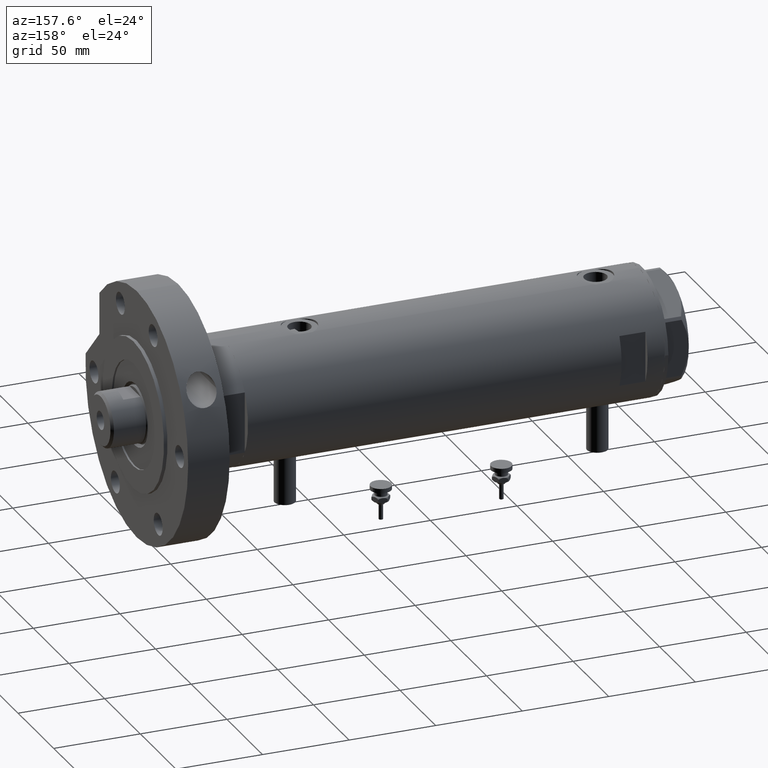
[diagram: clean part render]
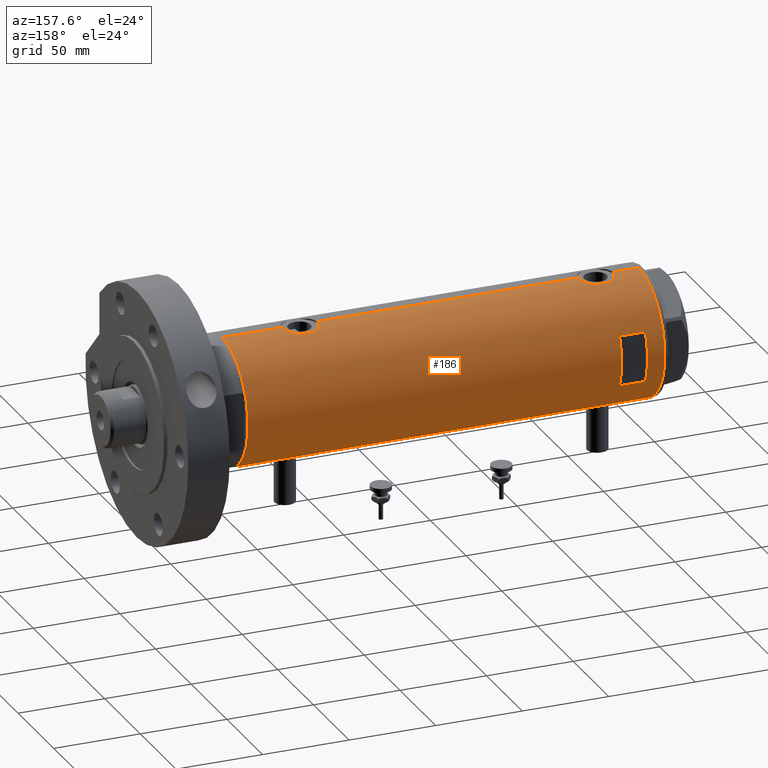
[diagram: same view with one face highlighted and labeled with its STEP entity id]
A machine part, auxiliary view. The second image highlights one B-rep face of the part: STEP entity #186.
In plain terms, the highlighted cylindrical surface (partial cylindrical patch) has radius 36.5 mm, axis along (-1, -0, 0).
Its self-contained STEP definition (entity closure, byte-faithful):
#61 = CARTESIAN_POINT ( 'NONE',  ( -36.05296344941216091, 5.695624845616832133, -86.68154856536754949 ) ) ;
#94 = CARTESIAN_POINT ( 'NONE',  ( -36.09643313249890184, 5.413601294342275771, -87.23007773391852027 ) ) ;
#139 = DIRECTION ( 'NONE',  ( 1.000000000000000000, 0.000000000000000000, 0.000000000000000000 ) ) ;
#142 = CARTESIAN_POINT ( 'NONE',  ( -36.36587679577595367, 3.131448301962863834, 90.98717534426380382 ) ) ;
#186 = ADVANCED_FACE ( 'NONE', ( #2455, #5833 ), #5795, .T. ) ;
#206 = CARTESIAN_POINT ( 'NONE',  ( -36.50000000000000000, 4.469960493350315609E-15, -90.35000000000000853 ) ) ;
#316 = CARTESIAN_POINT ( 'NONE',  ( 36.45853166336080875, 1.985123042546145022, 85.54837329582265681 ) ) ;
#322 = ORIENTED_EDGE ( 'NONE', *, *, #923, .T. ) ;
#327 = CARTESIAN_POINT ( 'NONE',  ( 36.40008489419980720, 2.709263960908029123, -65.97081895403607632 ) ) ;
#372 = CARTESIAN_POINT ( 'NONE',  ( 35.29999999999999716, 9.282241108697837362, -71.87978495245236843 ) ) ;
#376 = CARTESIAN_POINT ( 'NONE',  ( -35.96088929326157313, 6.250155299092687855, 95.99389505236757714 ) ) ;
#446 = CARTESIAN_POINT ( 'NONE',  ( -36.01679413914729366, 5.919813138266330377, 98.41499691047042120 ) ) ;
#474 = CARTESIAN_POINT ( 'NONE',  ( -36.50000000000000000, 1.603939656238031057E-15, -77.85000000000000853 ) ) ;
#486 = ORIENTED_EDGE ( 'NONE', *, *, #4735, .T. ) ;
#496 = DIRECTION ( 'NONE',  ( 0.000000000000000000, 4.625929269271492422E-15, 1.000000000000000000 ) ) ;
#543 = CARTESIAN_POINT ( 'NONE',  ( 36.44688397185920081, 1.983417953489138741, 105.2044995764825757 ) ) ;
#545 = CARTESIAN_POINT ( 'NONE',  ( -36.50000000000000000, 1.603939656238031057E-15, 102.6500000000000199 ) ) ;
#549 = CARTESIAN_POINT ( 'NONE',  ( -36.50000000000000000, 4.469960816887838430E-15, -120.4000000000000057 ) ) ;
#555 = CARTESIAN_POINT ( 'NONE',  ( 35.93456089024232369, 6.410413305453381838, -83.29085963204141763 ) ) ;
#631 = CARTESIAN_POINT ( 'NONE',  ( -36.44628644024909647, 2.015372769639941275, -90.03028128013588116 ) ) ;
#636 = CARTESIAN_POINT ( 'NONE',  ( -36.19597718496778072, 4.710322426433902976, 92.27148389237986237 ) ) ;
#659 = VERTEX_POINT ( 'NONE', #7530 ) ;
#706 = CARTESIAN_POINT ( 'NONE',  ( -36.49292802938585822, 0.8230716655928924652, -90.30906938753511781 ) ) ;
#720 = ORIENTED_EDGE ( 'NONE', *, *, #2199, .F. ) ;
#725 = CIRCLE ( 'NONE', #977, 36.50000000000000000 ) ;
#756 = DIRECTION ( 'NONE',  ( 0.000000000000000000, 0.000000000000000000, 1.000000000000000000 ) ) ;
#788 = CARTESIAN_POINT ( 'NONE',  ( -35.96805604460922723, 6.209309709790234777, -84.92112758268174844 ) ) ;
#854 = VERTEX_POINT ( 'NONE', #7006 ) ;
#859 = VECTOR ( 'NONE', #4956, 1000.000000000000000 ) ;
#879 = CARTESIAN_POINT ( 'NONE',  ( 36.48988646280794512, 0.9921857666168139023, -65.63671884865574668 ) ) ;
#893 = ORIENTED_EDGE ( 'NONE', *, *, #6376, .F. ) ;
#901 = EDGE_CURVE ( 'NONE', #5500, #2793, #6355, .T. ) ;
#918 = ORIENTED_EDGE ( 'NONE', *, *, #4522, .F. ) ;
#923 = EDGE_CURVE ( 'NONE', #3611, #6662, #6319, .T. ) ;
#934 = ORIENTED_EDGE ( 'NONE', *, *, #5407, .F. ) ;
#957 = CARTESIAN_POINT ( 'NONE',  ( 35.39804469700249001, 8.909380959553011792, -70.94946835517158945 ) ) ;
#962 = CARTESIAN_POINT ( 'NONE',  ( -36.16126303108062956, 4.966520032693302333, 100.2164122774528323 ) ) ;
#975 = EDGE_CURVE ( 'NONE', #4475, #1970, #5960, .T. ) ;
#977 = AXIS2_PLACEMENT_3D ( 'NONE', #5605, #7308, #2151 ) ;
#994 = CARTESIAN_POINT ( 'NONE',  ( 35.93435287561198521, 6.411571491280768420, -67.91011355077158385 ) ) ;
#1032 = CARTESIAN_POINT ( 'NONE',  ( 36.00145998247696610, 6.026272765084661032, -67.60449611787615254 ) ) ;
#1035 = CARTESIAN_POINT ( 'NONE',  ( -36.26643311080166399, 4.132772529026635944, 101.1061940526988536 ) ) ;
#1057 = CARTESIAN_POINT ( 'NONE',  ( 35.83170458557578542, 6.955065627744199119, 102.5894167191246424 ) ) ;
#1069 = AXIS2_PLACEMENT_3D ( 'NONE', #7112, #4047, #139 ) ;
#1076 = CARTESIAN_POINT ( 'NONE',  ( 36.13018480315372472, 5.199168368309159405, -84.15646498208049309 ) ) ;
#1111 = CARTESIAN_POINT ( 'NONE',  ( -36.11199073531170001, 5.309184630646994307, 99.70412840766836382 ) ) ;
#1151 = CARTESIAN_POINT ( 'NONE',  ( -36.09643313249890184, 5.413601294342275771, 93.26992226608146552 ) ) ;
#1176 = CARTESIAN_POINT ( 'NONE',  ( 36.34264078466112124, 3.418717136061403927, 104.8104903404075543 ) ) ;
#1179 = CARTESIAN_POINT ( 'NONE',  ( -36.09617453667821252, 5.415318599347967776, -80.97293357327090746 ) ) ;
#1188 = CARTESIAN_POINT ( 'NONE',  ( 35.29999999999999716, 9.282241108697837362, -79.32021504754763441 ) ) ;
#1191 = CARTESIAN_POINT ( 'NONE',  ( -36.50000000000000000, 4.469960816887838430E-15, -120.4000000000000057 ) ) ;
#1193 = EDGE_CURVE ( 'NONE', #2616, #4398, #5650, .T. ) ;
#1202 = VERTEX_POINT ( 'NONE', #5118 ) ;
#1217 = CARTESIAN_POINT ( 'NONE',  ( -36.11206433103227198, 5.308658295084048184, -87.40484648040978755 ) ) ;
#1265 = CARTESIAN_POINT ( 'NONE',  ( -36.11206433103227198, 5.308658295084048184, 93.09515351959024088 ) ) ;
#1297 = CARTESIAN_POINT ( 'NONE',  ( -36.06690560274405044, 5.606949625760674571, -86.86885923958932665 ) ) ;
#1330 = CARTESIAN_POINT ( 'NONE',  ( -36.35033317675380005, 3.306376218664579536, -89.40770719416052259 ) ) ;
#1373 = CARTESIAN_POINT ( 'NONE',  ( -35.99530513653993324, 6.049346314076207598, -85.72332583035837672 ) ) ;
#1441 = CARTESIAN_POINT ( 'NONE',  ( -14.49137674618942739, 33.50000000000000000, -120.4000000000000057 ) ) ;
#1461 = CARTESIAN_POINT ( 'NONE',  ( -36.50000000000000000, 1.603939656238031057E-15, -77.85000000000000853 ) ) ;
#1482 = ORIENTED_EDGE ( 'NONE', *, *, #901, .F. ) ;
#1523 = CARTESIAN_POINT ( 'NONE',  ( -36.50000000000000000, 4.469960816887838430E-15, -120.4000000000000057 ) ) ;
#1529 = CARTESIAN_POINT ( 'NONE',  ( 35.34894515018992678, 9.096104616284845790, 91.21535916533457566 ) ) ;
#1540 = CARTESIAN_POINT ( 'NONE',  ( 35.52347503888660896, 8.410566959990466884, -70.10046032740659427 ) ) ;
#1558 = CARTESIAN_POINT ( 'NONE',  ( 36.50000000000000711, 1.005842003469123336, 85.40000000000003411 ) ) ;
#1571 = CARTESIAN_POINT ( 'NONE',  ( -36.50000000000000000, 1.603939656238031057E-15, 102.6500000000000199 ) ) ;
#1582 = CARTESIAN_POINT ( 'NONE',  ( 36.50000000000000000, 4.344614706140975428E-19, 105.4000000000000057 ) ) ;
#1607 = CARTESIAN_POINT ( 'NONE',  ( -36.46462099658055678, 1.618684470865507041, 102.4402439702484742 ) ) ;
#1637 = CARTESIAN_POINT ( 'NONE',  ( 35.72794581931695745, 7.469526493268205058, 102.0533979672826490 ) ) ;
#1670 = CARTESIAN_POINT ( 'NONE',  ( 35.29999999999999716, 9.282241108697837362, 91.67978495245237980 ) ) ;
#1709 = CARTESIAN_POINT ( 'NONE',  ( 36.18937351723702278, 4.773052864917646687, 104.2013599311884064 ) ) ;
#1724 = CARTESIAN_POINT ( 'NONE',  ( -35.96094343308265451, 6.249843792257633091, 96.81087110344570590 ) ) ;
#1760 = EDGE_CURVE ( 'NONE', #6643, #3876, #3013, .T. ) ;
#1767 = CARTESIAN_POINT ( 'NONE',  ( -36.46598788992680085, 1.625721481788714895, 90.35127953286163915 ) ) ;
#1771 = CARTESIAN_POINT ( 'NONE',  ( 35.59366931936805400, 8.089554397885871495, -81.49927319087814226 ) ) ;
#1806 = CARTESIAN_POINT ( 'NONE',  ( 36.45853166336080875, 1.985123042546145022, -85.45162670417735740 ) ) ;
#1860 = ORIENTED_EDGE ( 'NONE', *, *, #3215, .T. ) ;
#1884 = CARTESIAN_POINT ( 'NONE',  ( -36.50000000000000000, 4.469960493350315609E-15, 90.15000000000000568 ) ) ;
#1915 = CARTESIAN_POINT ( 'NONE',  ( -36.46598788992680085, 1.625721481788714895, -90.14872046713837506 ) ) ;
#1970 = VERTEX_POINT ( 'NONE', #4125 ) ;
#1987 = LINE ( 'NONE', #5029, #6362 ) ;
#2006 = VERTEX_POINT ( 'NONE', #6458 ) ;
#2045 = CARTESIAN_POINT ( 'NONE',  ( 36.12877841835537396, 5.208882251161925936, -67.04946835209707956 ) ) ;
#2056 = ORIENTED_EDGE ( 'NONE', *, *, #7202, .T. ) ;
#2074 = LINE ( 'NONE', #2181, #3318 ) ;
#2076 = CARTESIAN_POINT ( 'NONE',  ( 35.72794581931695745, 7.469526493268205058, -68.94660203271739363 ) ) ;
#2108 = CARTESIAN_POINT ( 'NONE',  ( 36.18948008481302026, 4.772042575486208804, 86.59822368756844924 ) ) ;
#2146 = CARTESIAN_POINT ( 'NONE',  ( 36.00287854058830561, 6.017835360302999703, 87.39811882818277411 ) ) ;
#2151 = DIRECTION ( 'NONE',  ( 1.000000000000000000, 1.776356839400250465E-15, 0.000000000000000000 ) ) ;
#2173 = CARTESIAN_POINT ( 'NONE',  ( 36.36225053217120973, 3.177096004138049601, 85.91483975524022298 ) ) ;
#2181 = CARTESIAN_POINT ( 'NONE',  ( -36.50000000000000000, 4.469960816887838430E-15, -120.4000000000000057 ) ) ;
#2199 = EDGE_CURVE ( 'NONE', #659, #5078, #725, .T. ) ;
#2231 = VERTEX_POINT ( 'NONE', #545 ) ;
#2250 = CARTESIAN_POINT ( 'NONE',  ( 36.48988646280794512, 0.9921857666168139023, 105.3632811513442249 ) ) ;
#2264 = CARTESIAN_POINT ( 'NONE',  ( -36.47290054070997201, 1.420408912806973678, 102.4898698166001623 ) ) ;
#2293 = CARTESIAN_POINT ( 'NONE',  ( -36.49297130294515057, 0.8204796224394291793, -77.89068307782268619 ) ) ;
#2318 = EDGE_CURVE ( 'NONE', #2793, #854, #7081, .T. ) ;
#2345 = DIRECTION ( 'NONE',  ( -0.000000000000000000, -0.000000000000000000, -1.000000000000000000 ) ) ;
#2397 = ORIENTED_EDGE ( 'NONE', *, *, #2755, .F. ) ;
#2409 = CARTESIAN_POINT ( 'NONE',  ( -36.16083474549355259, 4.969527450313384165, -87.91205319122751405 ) ) ;
#2442 = DIRECTION ( 'NONE',  ( 0.000000000000000000, 0.000000000000000000, 1.000000000000000000 ) ) ;
#2455 = FACE_BOUND ( 'NONE', #4978, .T. ) ;
#2568 = CARTESIAN_POINT ( 'NONE',  ( -35.96088929326157313, 6.250155299092687855, -84.50610494763246550 ) ) ;
#2591 = CARTESIAN_POINT ( 'NONE',  ( 36.50000000000000000, 4.344614706140975428E-19, -65.60000000000000853 ) ) ;
#2616 = VERTEX_POINT ( 'NONE', #1523 ) ;
#2633 = B_SPLINE_CURVE_WITH_KNOTS ( 'NONE', 3,
 ( #372, #957, #1540, #2799, #2076, #3903, #4502, #994, #1032, #2045, #6688, #3795, #6115, #327, #6835, #4392, #4438, #879, #7427, #6801 ),
 .UNSPECIFIED., .F., .F.,
 ( 4, 2, 2, 2, 2, 2, 2, 2, 2, 4 ),
 ( 0.000000000000000000, 0.002977391289382919342, 0.003721739111728640179, 0.004466086934074362316, 0.005954782578765775367, 0.007443478223457188417, 0.008932173868148601467, 0.009676521690494316666, 0.01042086951284003013, 0.01190956515753145012 ),
 .UNSPECIFIED. ) ;
#2675 = CARTESIAN_POINT ( 'NONE',  ( 35.29999999999999716, 9.282241108697837362, -71.87978495245236843 ) ) ;
#2677 = CARTESIAN_POINT ( 'NONE',  ( 36.13018480315372472, 5.199168368309159405, 86.84353501791949270 ) ) ;
#2753 = CARTESIAN_POINT ( 'NONE',  ( 36.34070350304396868, 3.414301401755543974, 85.99763782624094688 ) ) ;
#2755 = EDGE_CURVE ( 'NONE', #4639, #5164, #3311, .T. ) ;
#2771 = CARTESIAN_POINT ( 'NONE',  ( -36.19624103943463922, 4.708090268046848159, 100.5306122144613994 ) ) ;
#2793 = VERTEX_POINT ( 'NONE', #5354 ) ;
#2795 = CARTESIAN_POINT ( 'NONE',  ( 0.000000000000000000, 0.000000000000000000, 120.4000000000000057 ) ) ;
#2799 = CARTESIAN_POINT ( 'NONE',  ( 35.69321149401851301, 7.633476302278308978, -69.13536927833558821 ) ) ;
#2802 = CARTESIAN_POINT ( 'NONE',  ( -36.30200038006936580, 3.811959488093743520, 101.3697210483601197 ) ) ;
#2806 = CARTESIAN_POINT ( 'NONE',  ( 36.18948008481302026, 4.772042575486208804, -84.40177631243157919 ) ) ;
#2852 = DIRECTION ( 'NONE',  ( 0.000000000000000000, 1.000000000000000000, -4.562560375171875891E-15 ) ) ;
#2860 = CARTESIAN_POINT ( 'NONE',  ( 35.93435287561198521, 6.411571491280768420, 103.0898864492284304 ) ) ;
#2878 = CARTESIAN_POINT ( 'NONE',  ( 36.50000000000000711, 1.005842003469123336, -85.59999999999999432 ) ) ;
#2898 = CARTESIAN_POINT ( 'NONE',  ( -14.49137674618942917, 33.50000000000000000, 95.40000000000000568 ) ) ;
#2904 = CARTESIAN_POINT ( 'NONE',  ( -36.36688032967140316, 3.133094607697482825, -78.67663567362490085 ) ) ;
#2915 = CARTESIAN_POINT ( 'NONE',  ( 35.79766710091575987, 7.135341284989891619, -82.62350520560903533 ) ) ;
#2936 = CARTESIAN_POINT ( 'NONE',  ( 36.00145998247696610, 6.026272765084661032, 103.3955038821238901 ) ) ;
#2952 = CARTESIAN_POINT ( 'NONE',  ( 36.34070350304396868, 3.414301401755543974, -85.00236217375905312 ) ) ;
#2955 = VECTOR ( 'NONE', #2442, 1000.000000000000000 ) ;
#2966 = CARTESIAN_POINT ( 'NONE',  ( -36.50000000000000000, 4.469960493350315609E-15, -90.35000000000000853 ) ) ;
#2984 = CARTESIAN_POINT ( 'NONE',  ( -36.19597718496778072, 4.710322426433902976, -88.22851610762016605 ) ) ;
#2991 = CARTESIAN_POINT ( 'NONE',  ( -36.30181775639987052, 3.813582387016785091, 91.43163942425562141 ) ) ;
#3013 = LINE ( 'NONE', #5219, #4137 ) ;
#3020 = CARTESIAN_POINT ( 'NONE',  ( -36.35033317675380005, 3.306376218664579536, 91.09229280583950583 ) ) ;
#3041 = CARTESIAN_POINT ( 'NONE',  ( 36.50000000000000000, 0.000000000000000000, -120.4000000000000057 ) ) ;
#3054 = CARTESIAN_POINT ( 'NONE',  ( -36.26695135241003953, 4.128455078791301247, -88.81037591644739848 ) ) ;
#3077 = EDGE_CURVE ( 'NONE', #2006, #6662, #4409, .T. ) ;
#3192 = EDGE_LOOP ( 'NONE', ( #486, #6525, #5633, #5881, #3758, #1860, #6669, #1482, #3463, #2056, #7019, #6237, #918, #322, #4921, #893 ) ) ;
#3215 = EDGE_CURVE ( 'NONE', #2231, #854, #2074, .T. ) ;
#3218 = VECTOR ( 'NONE', #5053, 1000.000000000000000 ) ;
#3298 = CARTESIAN_POINT ( 'NONE',  ( -36.03936508729894683, 5.782103729777505308, 98.79870532603798949 ) ) ;
#3311 = CIRCLE ( 'NONE', #3911, 36.50000000000000000 ) ;
#3318 = VECTOR ( 'NONE', #7351, 1000.000000000000000 ) ;
#3393 = CARTESIAN_POINT ( 'NONE',  ( 36.12877841835537396, 5.208882251161925936, 103.9505316479029347 ) ) ;
#3398 = VECTOR ( 'NONE', #4743, 1000.000000000000000 ) ;
#3436 = EDGE_CURVE ( 'NONE', #4475, #4398, #6320, .T. ) ;
#3463 = ORIENTED_EDGE ( 'NONE', *, *, #5157, .F. ) ;
#3486 = CARTESIAN_POINT ( 'NONE',  ( 36.26917563968160607, 4.104523505324181087, -84.72215988367473471 ) ) ;
#3504 = CARTESIAN_POINT ( 'NONE',  ( 36.49999999999999289, 0.4961820988516178477, 105.3999999999999915 ) ) ;
#3510 = CARTESIAN_POINT ( 'NONE',  ( -36.06675137892952421, 5.607935153446978127, -81.33318173991246169 ) ) ;
#3517 = CARTESIAN_POINT ( 'NONE',  ( -36.49292802938585822, 0.8230716655928924652, 90.19093061246485377 ) ) ;
#3551 = CARTESIAN_POINT ( 'NONE',  ( -36.39522946636253664, 2.769519034821242176, -89.70663923731271439 ) ) ;
#3596 = CARTESIAN_POINT ( 'NONE',  ( -36.39522946636253664, 2.769519034821242176, 90.79336076268728561 ) ) ;
#3611 = VERTEX_POINT ( 'NONE', #2675 ) ;
#3627 = CARTESIAN_POINT ( 'NONE',  ( -36.01679413914729366, 5.919813138266330377, -82.08500308952964986 ) ) ;
#3634 = CARTESIAN_POINT ( 'NONE',  ( -36.05296344941216091, 5.695624845616832133, 93.81845143463246472 ) ) ;
#3758 = ORIENTED_EDGE ( 'NONE', *, *, #7283, .F. ) ;
#3774 = CARTESIAN_POINT ( 'NONE',  ( 36.50000000000000000, 0.000000000000000000, -120.4000000000000057 ) ) ;
#3795 = CARTESIAN_POINT ( 'NONE',  ( 36.29611582693038940, 3.878758190381173421, -66.36955010900452123 ) ) ;
#3816 = AXIS2_PLACEMENT_3D ( 'NONE', #4268, #756, #6070 ) ;
#3857 = CARTESIAN_POINT ( 'NONE',  ( 35.29999999999999716, 9.282241108697837362, 91.67978495245237980 ) ) ;
#3876 = VERTEX_POINT ( 'NONE', #6523 ) ;
#3903 = CARTESIAN_POINT ( 'NONE',  ( 35.79715675463678792, 7.130463293899340194, -68.58444415894004464 ) ) ;
#3907 = CARTESIAN_POINT ( 'NONE',  ( -36.49297130294515057, 0.8204796224394291793, 102.6093169221773564 ) ) ;
#3911 = AXIS2_PLACEMENT_3D ( 'NONE', #5737, #496, #2852 ) ;
#3937 = DIRECTION ( 'NONE',  ( 1.000000000000000000, 0.000000000000000000, 0.000000000000000000 ) ) ;
#4001 = CARTESIAN_POINT ( 'NONE',  ( 35.29999999999999716, 9.282241108697837362, 99.12021504754764578 ) ) ;
#4019 = CARTESIAN_POINT ( 'NONE',  ( 36.50000000000000000, 0.000000000000000000, -120.4000000000000057 ) ) ;
#4038 = CARTESIAN_POINT ( 'NONE',  ( 36.41717583764486932, 2.469534783404761402, 105.0934801117567190 ) ) ;
#4045 = CARTESIAN_POINT ( 'NONE',  ( -36.43371204571226230, 2.206934156026287841, -78.24902718329002482 ) ) ;
#4047 = DIRECTION ( 'NONE',  ( 0.000000000000000000, 0.000000000000000000, 1.000000000000000000 ) ) ;
#4053 = EDGE_CURVE ( 'NONE', #5078, #4639, #1987, .T. ) ;
#4058 = CARTESIAN_POINT ( 'NONE',  ( 36.36225053217120973, 3.177096004138049601, -85.08516024475976280 ) ) ;
#4083 = CARTESIAN_POINT ( 'NONE',  ( -36.30200038006936580, 3.811959488093743520, -79.13027895163997982 ) ) ;
#4092 = CARTESIAN_POINT ( 'NONE',  ( -35.96805604460922723, 6.209309709790234777, 95.57887241731832262 ) ) ;
#4096 = CARTESIAN_POINT ( 'NONE',  ( 35.52737867031126484, 8.373910777960906771, -81.08860356717065088 ) ) ;
#4118 = CARTESIAN_POINT ( 'NONE',  ( -36.01524716445113938, 5.931039972055515364, -86.11330731864657650 ) ) ;
#4125 = CARTESIAN_POINT ( 'NONE',  ( -36.50000000000000000, 4.469960493350315609E-15, 90.15000000000000568 ) ) ;
#4128 = CARTESIAN_POINT ( 'NONE',  ( 36.29420020483473053, 3.877527130731370342, -84.82098974400292946 ) ) ;
#4137 = VECTOR ( 'NONE', #6446, 1000.000000000000000 ) ;
#4268 = CARTESIAN_POINT ( 'NONE',  ( 0.000000000000000000, 0.000000000000000000, -120.4000000000000057 ) ) ;
#4392 = CARTESIAN_POINT ( 'NONE',  ( 36.44688397185920081, 1.983417953489138741, -65.79550042351749539 ) ) ;
#4398 = VERTEX_POINT ( 'NONE', #2966 ) ;
#4409 = B_SPLINE_CURVE_WITH_KNOTS ( 'NONE', 3,
 ( #7004, #2878, #1806, #4058, #2952, #4128, #3486, #2806, #1076, #5804, #555, #2915, #5235, #1771, #4096, #6423, #5273, #1188 ),
 .UNSPECIFIED., .F., .F.,
 ( 4, 2, 2, 2, 2, 2, 2, 2, 4 ),
 ( 1.734723475976807094E-18, 0.002973648994175672518, 0.003717061242719596394, 0.004460473491263520704, 0.005947297988351386670, 0.007434122485439251769, 0.008920946982527117736, 0.01040777147961498283, 0.01189459597670284793 ),
 .UNSPECIFIED. ) ;
#4419 = CIRCLE ( 'NONE', #3816, 36.50000000000000000 ) ;
#4438 = CARTESIAN_POINT ( 'NONE',  ( 36.45954139109321801, 1.735915671103595681, -65.74863218852992475 ) ) ;
#4475 = VERTEX_POINT ( 'NONE', #1461 ) ;
#4502 = CARTESIAN_POINT ( 'NONE',  ( 35.83170458557578542, 6.955065627744199119, -68.41058328087537177 ) ) ;
#4522 = EDGE_CURVE ( 'NONE', #3611, #6643, #2633, .T. ) ;
#4528 = CARTESIAN_POINT ( 'NONE',  ( 35.52347503888660896, 8.410566959990466884, 100.8995396725934057 ) ) ;
#4552 = DIRECTION ( 'NONE',  ( 0.000000000000000000, 0.000000000000000000, 1.000000000000000000 ) ) ;
#4606 = CARTESIAN_POINT ( 'NONE',  ( -36.46462099658055678, 1.618684470865507041, -78.05975602975156846 ) ) ;
#4615 = CARTESIAN_POINT ( 'NONE',  ( -36.06675137892952421, 5.607935153446978127, 99.16681826008760936 ) ) ;
#4639 = VERTEX_POINT ( 'NONE', #5796 ) ;
#4653 = CARTESIAN_POINT ( 'NONE',  ( -36.19624103943463922, 4.708090268046848159, -79.96938778553864324 ) ) ;
#4662 = B_SPLINE_CURVE_WITH_KNOTS ( 'NONE', 3,
 ( #1571, #5158, #3907, #2264, #1607, #5616, #6233, #5651, #6347, #2802, #1035, #2771, #962, #1111, #5688, #4615, #3298, #446, #5087, #6955, #5121, #1724, #376, #4092, #5882, #6501, #3634, #5837, #1151, #1265, #6999, #636, #4703, #2991, #3020, #142, #3596, #7117, #5953, #1767, #3517, #6419, #1884 ),
 .UNSPECIFIED., .F., .F.,
 ( 4, 2, 2, 2, 2, 2, 2, 2, 1, 2, 2, 2, 2, 2, 2, 2, 2, 2, 2, 2, 2, 4 ),
 ( 1.558294008431693624E-18, 0.001223527801214140684, 0.001835291701821213954, 0.002447055602428288307, 0.003670583403642434413, 0.004894111204856580084, 0.006117639006070725756, 0.006729402906677815072, 0.007341166807284903520, 0.007952930707891993703, 0.008564694608499082151, 0.009788222409713260783, 0.01101175021092743941, 0.01223527801214161631, 0.01284704191274868568, 0.01345880581335575504, 0.01468233361456989725, 0.01590586141578403945, 0.01651762531639110881, 0.01712938921699818165, 0.01835291701821230650, 0.01957644481942643136 ),
 .UNSPECIFIED. ) ;
#4703 = CARTESIAN_POINT ( 'NONE',  ( -36.26695135241003953, 4.128455078791301247, 91.68962408355257310 ) ) ;
#4721 = LINE ( 'NONE', #3041, #2955 ) ;
#4731 = CARTESIAN_POINT ( 'NONE',  ( -36.40902375114221456, 2.582415566883930591, -89.79521691469687994 ) ) ;
#4735 = EDGE_CURVE ( 'NONE', #5426, #2616, #4419, .T. ) ;
#4743 = DIRECTION ( 'NONE',  ( 0.000000000000000000, 0.000000000000000000, 1.000000000000000000 ) ) ;
#4766 = CARTESIAN_POINT ( 'NONE',  ( -35.96793274302675059, 6.210029014836887740, -83.28305762320685801 ) ) ;
#4816 = CARTESIAN_POINT ( 'NONE',  ( -35.96094343308265451, 6.249843792257633091, -83.68912889655432252 ) ) ;
#4876 = DIRECTION ( 'NONE',  ( -0.000000000000000000, -0.000000000000000000, -1.000000000000000000 ) ) ;
#4921 = ORIENTED_EDGE ( 'NONE', *, *, #3077, .F. ) ;
#4930 = CARTESIAN_POINT ( 'NONE',  ( 35.52737867031126484, 8.373910777960906771, 89.91139643282933491 ) ) ;
#4956 = DIRECTION ( 'NONE',  ( 0.000000000000000000, 0.000000000000000000, 1.000000000000000000 ) ) ;
#4978 = EDGE_LOOP ( 'NONE', ( #934, #2397, #5297, #720 ) ) ;
#4985 = CARTESIAN_POINT ( 'NONE',  ( 35.29999999999999716, 9.282241108697837362, -79.32021504754763441 ) ) ;
#5021 = EDGE_CURVE ( 'NONE', #3876, #5066, #7190, .T. ) ;
#5029 = CARTESIAN_POINT ( 'NONE',  ( 14.49137674618942739, 33.50000000000000000, -120.4000000000000057 ) ) ;
#5031 = LINE ( 'NONE', #1441, #859 ) ;
#5053 = DIRECTION ( 'NONE',  ( -0.000000000000000000, -0.000000000000000000, -1.000000000000000000 ) ) ;
#5066 = VERTEX_POINT ( 'NONE', #1670 ) ;
#5071 = CARTESIAN_POINT ( 'NONE',  ( 35.59366931936805400, 8.089554397885871495, 89.50072680912188616 ) ) ;
#5078 = VERTEX_POINT ( 'NONE', #7024 ) ;
#5087 = CARTESIAN_POINT ( 'NONE',  ( -35.99700617875953412, 6.038972911021586398, 98.02333185798320869 ) ) ;
#5118 = CARTESIAN_POINT ( 'NONE',  ( 35.29999999999999716, 9.282241108697837362, 99.12021504754764578 ) ) ;
#5121 = CARTESIAN_POINT ( 'NONE',  ( -35.96793274302675059, 6.210029014836887740, 97.21694237679319883 ) ) ;
#5152 = CARTESIAN_POINT ( 'NONE',  ( -36.50000000000000000, 0.4137727629436737664, -77.84999999999999432 ) ) ;
#5157 = EDGE_CURVE ( 'NONE', #1202, #5500, #5983, .T. ) ;
#5158 = CARTESIAN_POINT ( 'NONE',  ( -36.50000000000000000, 0.4137727629436737664, 102.6500000000000057 ) ) ;
#5164 = VERTEX_POINT ( 'NONE', #2898 ) ;
#5192 = CARTESIAN_POINT ( 'NONE',  ( 35.29999999999999716, 9.282241108697837362, -120.4000000000000057 ) ) ;
#5200 = CARTESIAN_POINT ( 'NONE',  ( 35.29999999999999716, 9.282241108697837362, -120.4000000000000057 ) ) ;
#5219 = CARTESIAN_POINT ( 'NONE',  ( 36.50000000000000000, 0.000000000000000000, -120.4000000000000057 ) ) ;
#5224 = CARTESIAN_POINT ( 'NONE',  ( -36.26643311080166399, 4.132772529026635944, -79.39380594730118901 ) ) ;
#5235 = CARTESIAN_POINT ( 'NONE',  ( 35.72860827204725354, 7.471059959301281417, -82.26525150474411419 ) ) ;
#5273 = CARTESIAN_POINT ( 'NONE',  ( 35.34894515018992678, 9.096104616284845790, -79.78464083466539591 ) ) ;
#5297 = ORIENTED_EDGE ( 'NONE', *, *, #4053, .F. ) ;
#5300 = CARTESIAN_POINT ( 'NONE',  ( -35.99700617875953412, 6.038972911021586398, -82.47666814201681973 ) ) ;
#5334 = CARTESIAN_POINT ( 'NONE',  ( -36.36587679577595367, 3.131448301962863834, -89.51282465573618197 ) ) ;
#5354 = CARTESIAN_POINT ( 'NONE',  ( 36.50000000000000000, 0.000000000000000000, 120.4000000000000057 ) ) ;
#5378 = CARTESIAN_POINT ( 'NONE',  ( -36.49999999999999289, 0.4083036190459308212, -90.34999999999998010 ) ) ;
#5407 = EDGE_CURVE ( 'NONE', #5164, #659, #5031, .T. ) ;
#5426 = VERTEX_POINT ( 'NONE', #3774 ) ;
#5489 = CARTESIAN_POINT ( 'NONE',  ( 35.72860827204725354, 7.471059959301281417, 88.73474849525594266 ) ) ;
#5500 = VERTEX_POINT ( 'NONE', #1582 ) ;
#5587 = VECTOR ( 'NONE', #2345, 1000.000000000000000 ) ;
#5605 = CARTESIAN_POINT ( 'NONE',  ( 0.000000000000000000, 0.000000000000000000, 110.3999999999999915 ) ) ;
#5616 = CARTESIAN_POINT ( 'NONE',  ( -36.44504802628534179, 2.011764947064737630, 102.3209364490851954 ) ) ;
#5633 = ORIENTED_EDGE ( 'NONE', *, *, #3436, .F. ) ;
#5650 = LINE ( 'NONE', #549, #5952 ) ;
#5651 = CARTESIAN_POINT ( 'NONE',  ( -36.39638105034455151, 2.774378062517171006, 102.0154333269910296 ) ) ;
#5688 = CARTESIAN_POINT ( 'NONE',  ( -36.09617453667821252, 5.415318599347967776, 99.52706642672912096 ) ) ;
#5712 = CARTESIAN_POINT ( 'NONE',  ( 36.29611582693038940, 3.878758190381173421, 104.6304498909955072 ) ) ;
#5717 = DIRECTION ( 'NONE',  ( 0.000000000000000000, 0.000000000000000000, 1.000000000000000000 ) ) ;
#5737 = CARTESIAN_POINT ( 'NONE',  ( 0.000000000000000000, 0.000000000000000000, 95.40000000000014779 ) ) ;
#5789 = CARTESIAN_POINT ( 'NONE',  ( 36.40008489419980720, 2.709263960908029123, 105.0291810459639095 ) ) ;
#5795 = CYLINDRICAL_SURFACE ( 'NONE', #1069, 36.50000000000000000 ) ;
#5796 = CARTESIAN_POINT ( 'NONE',  ( 14.49137674618942917, 33.50000000000000000, 95.40000000000000568 ) ) ;
#5804 = CARTESIAN_POINT ( 'NONE',  ( 36.00287854058830561, 6.017835360302999703, -83.60188117181724010 ) ) ;
#5833 = FACE_OUTER_BOUND ( 'NONE', #3192, .T. ) ;
#5837 = CARTESIAN_POINT ( 'NONE',  ( -36.06690560274405044, 5.606949625760674571, 93.63114076041070177 ) ) ;
#5874 = CARTESIAN_POINT ( 'NONE',  ( -36.30181775639987052, 3.813582387016785091, -89.06836057574435017 ) ) ;
#5881 = ORIENTED_EDGE ( 'NONE', *, *, #975, .T. ) ;
#5882 = CARTESIAN_POINT ( 'NONE',  ( -35.99530513653993324, 6.049346314076207598, 94.77667416964166591 ) ) ;
#5947 = CARTESIAN_POINT ( 'NONE',  ( -35.98846897517730525, 6.089479646546502423, -82.67765108453481560 ) ) ;
#5952 = VECTOR ( 'NONE', #6272, 1000.000000000000000 ) ;
#5953 = CARTESIAN_POINT ( 'NONE',  ( -36.44628644024909647, 2.015372769639941275, 90.46971871986418989 ) ) ;
#5960 = LINE ( 'NONE', #1191, #3398 ) ;
#5983 = B_SPLINE_CURVE_WITH_KNOTS ( 'NONE', 3,
 ( #4001, #6939, #4528, #6866, #1637, #6300, #1057, #2860, #2936, #3393, #1709, #5712, #1176, #5789, #4038, #543, #7495, #2250, #3504, #6371 ),
 .UNSPECIFIED., .F., .F.,
 ( 4, 2, 2, 2, 2, 2, 2, 2, 2, 4 ),
 ( 0.000000000000000000, 0.002977391289382919342, 0.003721739111728640179, 0.004466086934074362316, 0.005954782578765775367, 0.007443478223457188417, 0.008932173868148601467, 0.009676521690494316666, 0.01042086951284003013, 0.01190956515753145012 ),
 .UNSPECIFIED. ) ;
#6070 = DIRECTION ( 'NONE',  ( 1.000000000000000000, 0.000000000000000000, 0.000000000000000000 ) ) ;
#6082 = VECTOR ( 'NONE', #4552, 1000.000000000000000 ) ;
#6115 = CARTESIAN_POINT ( 'NONE',  ( 36.34264078466112124, 3.418717136061403927, -66.18950965959250254 ) ) ;
#6178 = CARTESIAN_POINT ( 'NONE',  ( 35.93456089024232369, 6.410413305453381838, 87.70914036795856816 ) ) ;
#6233 = CARTESIAN_POINT ( 'NONE',  ( -36.43371204571226230, 2.206934156026287841, 102.2509728167099752 ) ) ;
#6237 = ORIENTED_EDGE ( 'NONE', *, *, #1760, .F. ) ;
#6262 = CARTESIAN_POINT ( 'NONE',  ( 35.79766710091575987, 7.135341284989891619, 88.37649479439097888 ) ) ;
#6272 = DIRECTION ( 'NONE',  ( 0.000000000000000000, 0.000000000000000000, 1.000000000000000000 ) ) ;
#6300 = CARTESIAN_POINT ( 'NONE',  ( 35.79715675463678792, 7.130463293899340194, 102.4155558410599696 ) ) ;
#6319 = LINE ( 'NONE', #5200, #5587 ) ;
#6320 = B_SPLINE_CURVE_WITH_KNOTS ( 'NONE', 3,
 ( #474, #5152, #2293, #7502, #4606, #6946, #4045, #6380, #2904, #4083, #5224, #4653, #6992, #6413, #1179, #3510, #7189, #3627, #5300, #5947, #4766, #4816, #2568, #788, #1373, #4118, #61, #1297, #94, #1217, #2409, #2984, #3054, #5874, #1330, #5334, #3551, #4731, #631, #1915, #706, #5378, #206 ),
 .UNSPECIFIED., .F., .F.,
 ( 4, 2, 2, 2, 2, 2, 2, 2, 1, 2, 2, 2, 2, 2, 2, 2, 2, 2, 2, 2, 2, 4 ),
 ( 1.558294008431693624E-18, 0.001223527801214140684, 0.001835291701821213954, 0.002447055602428288307, 0.003670583403642434413, 0.004894111204856580084, 0.006117639006070725756, 0.006729402906677815072, 0.007341166807284903520, 0.007952930707891993703, 0.008564694608499082151, 0.009788222409713260783, 0.01101175021092743941, 0.01223527801214161631, 0.01284704191274868568, 0.01345880581335575504, 0.01468233361456989725, 0.01590586141578403945, 0.01651762531639110881, 0.01712938921699818165, 0.01835291701821230650, 0.01957644481942643136 ),
 .UNSPECIFIED. ) ;
#6347 = CARTESIAN_POINT ( 'NONE',  ( -36.36688032967140316, 3.133094607697482825, 101.8233643263751276 ) ) ;
#6355 = LINE ( 'NONE', #4019, #6082 ) ;
#6362 = VECTOR ( 'NONE', #4876, 1000.000000000000000 ) ;
#6371 = CARTESIAN_POINT ( 'NONE',  ( 36.50000000000000000, 4.344614706140975428E-19, 105.4000000000000057 ) ) ;
#6376 = EDGE_CURVE ( 'NONE', #5426, #2006, #4721, .T. ) ;
#6380 = CARTESIAN_POINT ( 'NONE',  ( -36.39638105034455151, 2.774378062517171006, -78.48456667300897038 ) ) ;
#6413 = CARTESIAN_POINT ( 'NONE',  ( -36.11199073531170001, 5.309184630646994307, -80.79587159233167881 ) ) ;
#6419 = CARTESIAN_POINT ( 'NONE',  ( -36.49999999999999289, 0.4083036190459308212, 90.14999999999997726 ) ) ;
#6423 = CARTESIAN_POINT ( 'NONE',  ( 35.40502660484481368, 8.876998817796907915, -80.23098724071233789 ) ) ;
#6446 = DIRECTION ( 'NONE',  ( 0.000000000000000000, 0.000000000000000000, 1.000000000000000000 ) ) ;
#6458 = CARTESIAN_POINT ( 'NONE',  ( 36.50000000000000000, 0.000000000000000000, -85.59999999999999432 ) ) ;
#6501 = CARTESIAN_POINT ( 'NONE',  ( -36.01524716445113938, 5.931039972055515364, 94.38669268135348034 ) ) ;
#6523 = CARTESIAN_POINT ( 'NONE',  ( 36.50000000000000000, 0.000000000000000000, 85.40000000000001990 ) ) ;
#6525 = ORIENTED_EDGE ( 'NONE', *, *, #1193, .T. ) ;
#6643 = VERTEX_POINT ( 'NONE', #2591 ) ;
#6662 = VERTEX_POINT ( 'NONE', #4985 ) ;
#6669 = ORIENTED_EDGE ( 'NONE', *, *, #2318, .F. ) ;
#6678 = CARTESIAN_POINT ( 'NONE',  ( 36.26917563968160607, 4.104523505324181087, 86.27784011632525107 ) ) ;
#6688 = CARTESIAN_POINT ( 'NONE',  ( 36.18937351723702278, 4.773052864917646687, -66.79864006881156513 ) ) ;
#6758 = CARTESIAN_POINT ( 'NONE',  ( 35.40502660484481368, 8.876998817796907915, 90.76901275928764790 ) ) ;
#6801 = CARTESIAN_POINT ( 'NONE',  ( 36.50000000000000000, 4.344614706140975428E-19, -65.60000000000000853 ) ) ;
#6835 = CARTESIAN_POINT ( 'NONE',  ( 36.41717583764486932, 2.469534783404761402, -65.90651988824329521 ) ) ;
#6866 = CARTESIAN_POINT ( 'NONE',  ( 35.69321149401851301, 7.633476302278308978, 101.8646307216643976 ) ) ;
#6939 = CARTESIAN_POINT ( 'NONE',  ( 35.39804469700249001, 8.909380959553011792, 100.0505316448284532 ) ) ;
#6946 = CARTESIAN_POINT ( 'NONE',  ( -36.44504802628534179, 2.011764947064737630, -78.17906355091480464 ) ) ;
#6955 = CARTESIAN_POINT ( 'NONE',  ( -35.98846897517730525, 6.089479646546502423, 97.82234891546525546 ) ) ;
#6992 = CARTESIAN_POINT ( 'NONE',  ( -36.16126303108062956, 4.966520032693302333, -80.28358772254716769 ) ) ;
#6999 = CARTESIAN_POINT ( 'NONE',  ( -36.16083474549355259, 4.969527450313384165, 92.58794680877254279 ) ) ;
#7004 = CARTESIAN_POINT ( 'NONE',  ( 36.50000000000000000, 0.000000000000000000, -85.59999999999999432 ) ) ;
#7006 = CARTESIAN_POINT ( 'NONE',  ( -36.50000000000000000, 4.469960816887838430E-15, 120.4000000000000057 ) ) ;
#7019 = ORIENTED_EDGE ( 'NONE', *, *, #5021, .F. ) ;
#7024 = CARTESIAN_POINT ( 'NONE',  ( 14.49137674618942739, 33.50000000000000000, 110.3999999999999915 ) ) ;
#7081 = CIRCLE ( 'NONE', #7451, 36.50000000000000000 ) ;
#7112 = CARTESIAN_POINT ( 'NONE',  ( 0.000000000000000000, 0.000000000000000000, -120.4000000000000057 ) ) ;
#7117 = CARTESIAN_POINT ( 'NONE',  ( -36.40902375114221456, 2.582415566883930591, 90.70478308530314848 ) ) ;
#7189 = CARTESIAN_POINT ( 'NONE',  ( -36.03936508729894683, 5.782103729777505308, -81.70129467396205314 ) ) ;
#7190 = B_SPLINE_CURVE_WITH_KNOTS ( 'NONE', 3,
 ( #7385, #1558, #316, #2173, #2753, #7341, #6678, #2108, #2677, #2146, #6178, #6262, #5489, #5071, #4930, #6758, #1529, #3857 ),
 .UNSPECIFIED., .F., .F.,
 ( 4, 2, 2, 2, 2, 2, 2, 2, 4 ),
 ( 1.734723475976807094E-18, 0.002973648994175672518, 0.003717061242719596394, 0.004460473491263520704, 0.005947297988351386670, 0.007434122485439251769, 0.008920946982527117736, 0.01040777147961498283, 0.01189459597670284793 ),
 .UNSPECIFIED. ) ;
#7202 = EDGE_CURVE ( 'NONE', #1202, #5066, #7401, .T. ) ;
#7283 = EDGE_CURVE ( 'NONE', #2231, #1970, #4662, .T. ) ;
#7308 = DIRECTION ( 'NONE',  ( -0.000000000000000000, -0.000000000000000000, -1.000000000000000000 ) ) ;
#7341 = CARTESIAN_POINT ( 'NONE',  ( 36.29420020483473053, 3.877527130731370342, 86.17901025599708476 ) ) ;
#7351 = DIRECTION ( 'NONE',  ( 0.000000000000000000, 0.000000000000000000, 1.000000000000000000 ) ) ;
#7385 = CARTESIAN_POINT ( 'NONE',  ( 36.50000000000000000, 0.000000000000000000, 85.40000000000001990 ) ) ;
#7401 = LINE ( 'NONE', #5192, #3218 ) ;
#7427 = CARTESIAN_POINT ( 'NONE',  ( 36.49999999999999289, 0.4961820988516178477, -65.59999999999999432 ) ) ;
#7451 = AXIS2_PLACEMENT_3D ( 'NONE', #2795, #5717, #3937 ) ;
#7495 = CARTESIAN_POINT ( 'NONE',  ( 36.45954139109321801, 1.735915671103595681, 105.2513678114701179 ) ) ;
#7502 = CARTESIAN_POINT ( 'NONE',  ( -36.47290054070997201, 1.420408912806973678, -78.01013018339985194 ) ) ;
#7530 = CARTESIAN_POINT ( 'NONE',  ( -14.49137674618942739, 33.50000000000000000, 110.3999999999999915 ) ) ;